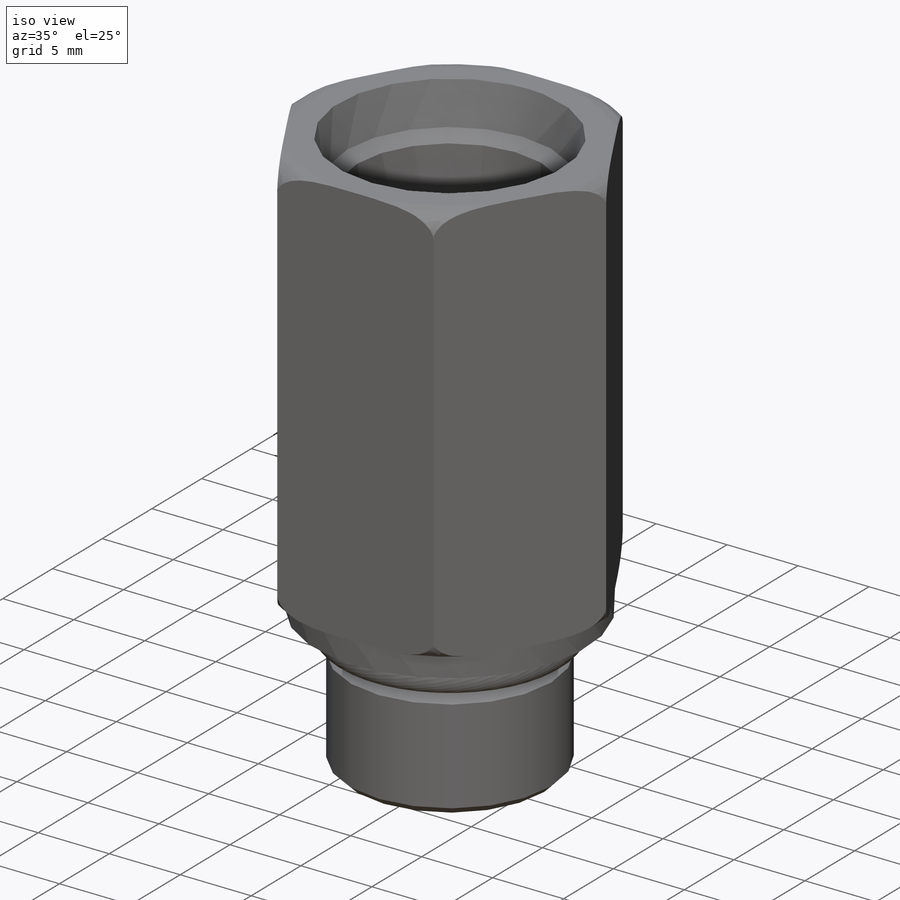
[diagram: iso view]
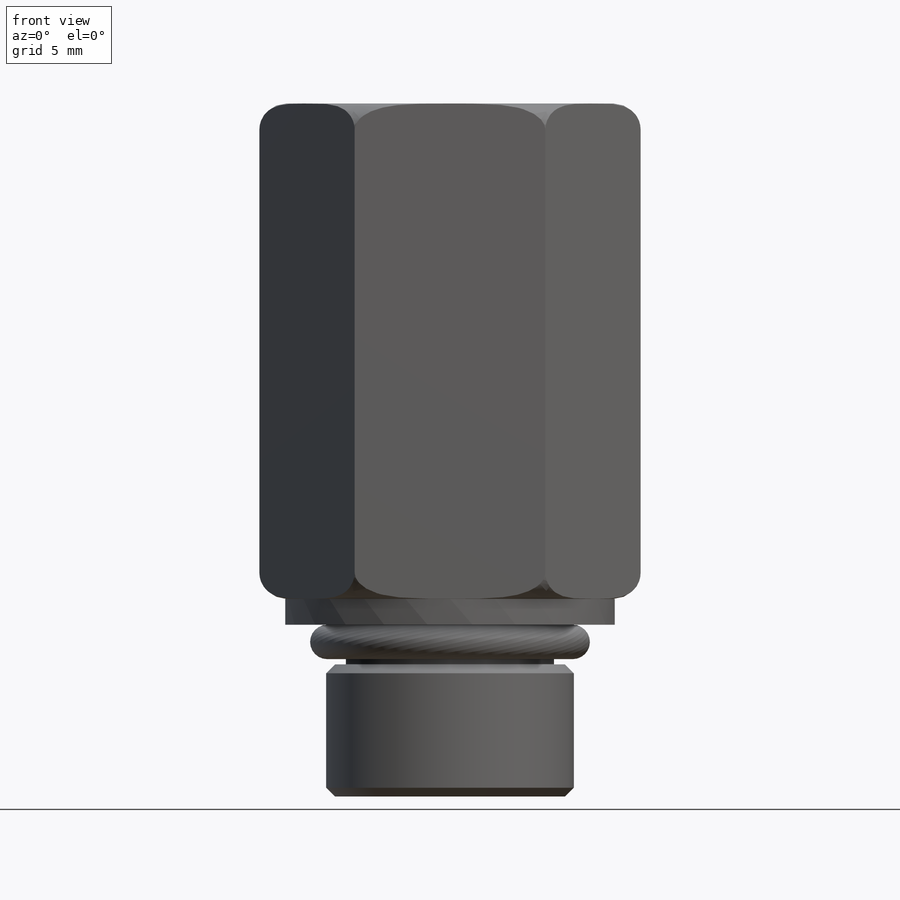
[diagram: front view]
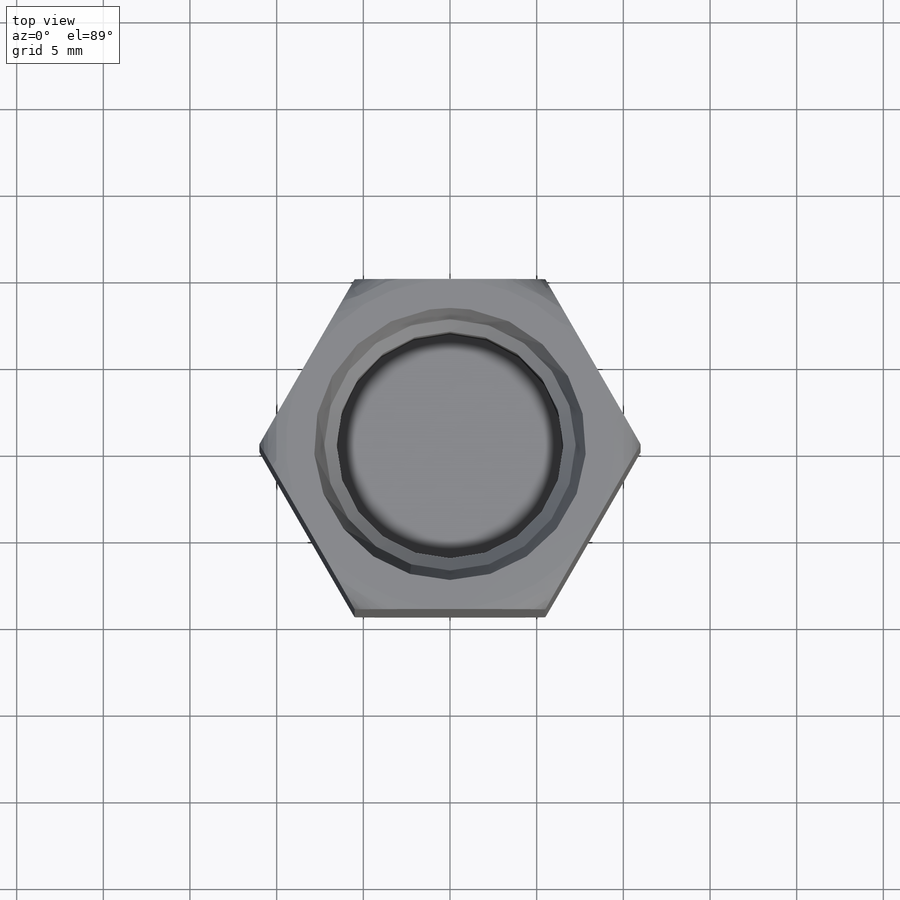
[diagram: top view]
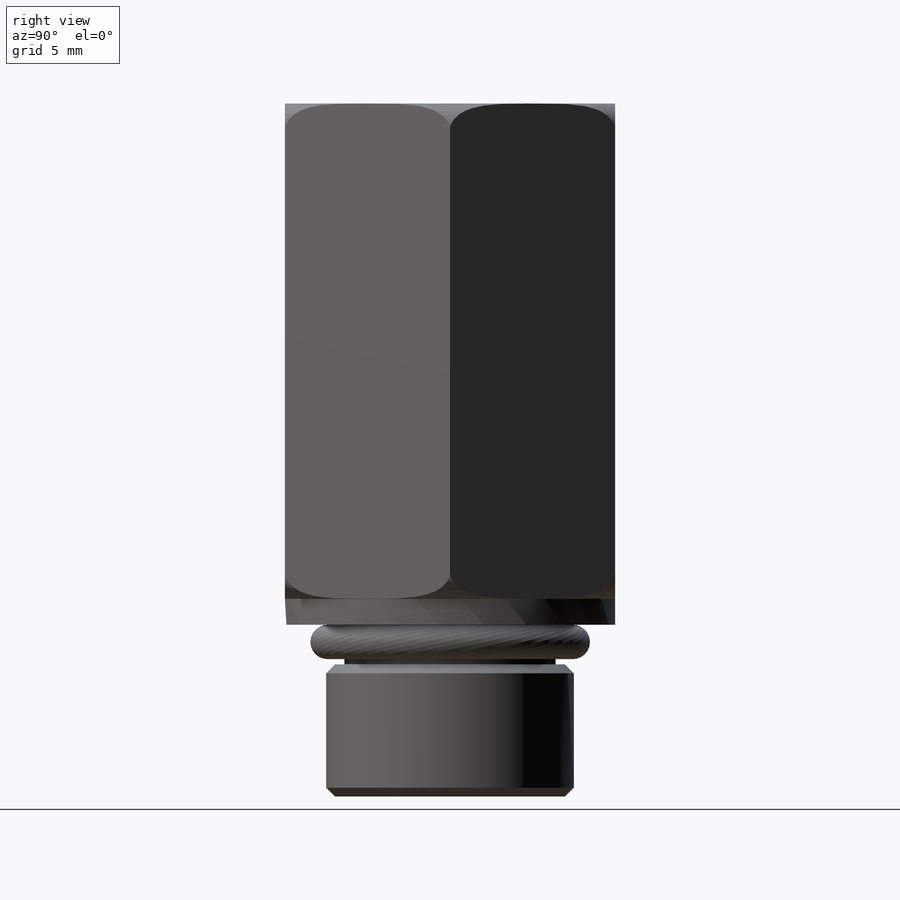
[diagram: right view]
SOLIDWORKS PART (.sldprt)
format: sldprt  version: not decoded by parser v0  size: 279,552 bytes
history: native  units: mm
features: plane x7, sketch x7, cut_revolve x3, revolve x2, material x1, extrude x1, chamfer x1, cut_extrude x1 (+13 scaffold rows collapsed)
feature tree (36):
  scaffold x13  (default folders/planes/origin — collapsed)
  material  "Alloy Steel"
  plane  "Plane1"
  sketch  "Sketch1"  dims[D1=19.05mm]
  extrude  "Extrude1"  Depth=28.575mm
  plane  "Plane2"
  sketch  "Sketch2"  dims[D1=1.524mm]
  cut_revolve  "Cut-Revolve1"  Angle=360deg
  plane  "Plane3"
  sketch  "Sketch3"  dims[D1=1.524mm]
  cut_revolve  "Cut-Revolve2"  Angle=360deg
  plane  "Plane4"
  sketch  "S2D0004"  dims[c1.D1=15.6972mm c1.D2=2.8067mm c2.D2=12.0deg c2.D3=~0.938886mm c3.D3=45.0deg c3.D4=2.8067mm c3.D5=13.081mm c3.D6=12.446mm]
  cut_revolve  "Cut-Revolve3"  Angle=360deg
  plane  "Plane5"
  sketch  "Sketch5"  dims[D1=9.906mm D2=11.4046mm D3=14.2875mm D4=12.192mm D5=2.286mm D6=19.05mm]
  revolve  "Revolve1"  Angle=360deg
  chamfer  "Chamfer1"  Distance=0.508mm Angle=45deg
  plane  "Plane6"
  plane  "Plane7"
  sketch  "Sketch7"  dims[D1=1.9812mm D2=14.1732mm]
  revolve  "Revolve3"  Angle=360deg
  sketch  "Sketch8"  dims[D1=6.35mm]
  cut_extrude  "Cut-Extrude1"  Depth=9.906mm
decode coverage: 15 of 15 modeling features carry decoded parameters
note: ~ marks probable driven/reference dimensions
note: suppression state not decoded; provenance and decode notes live in map.json
